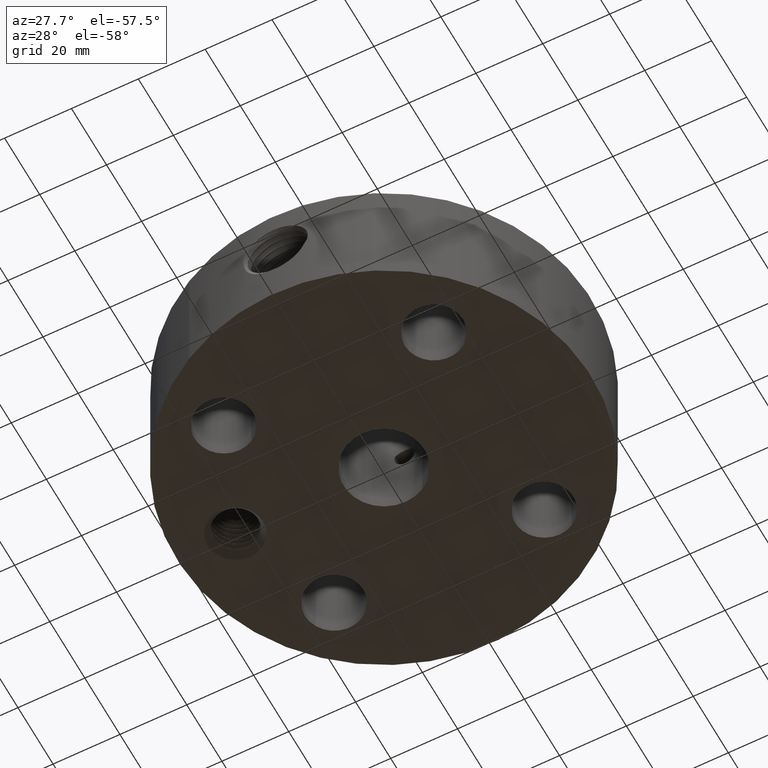
[diagram: clean part render]
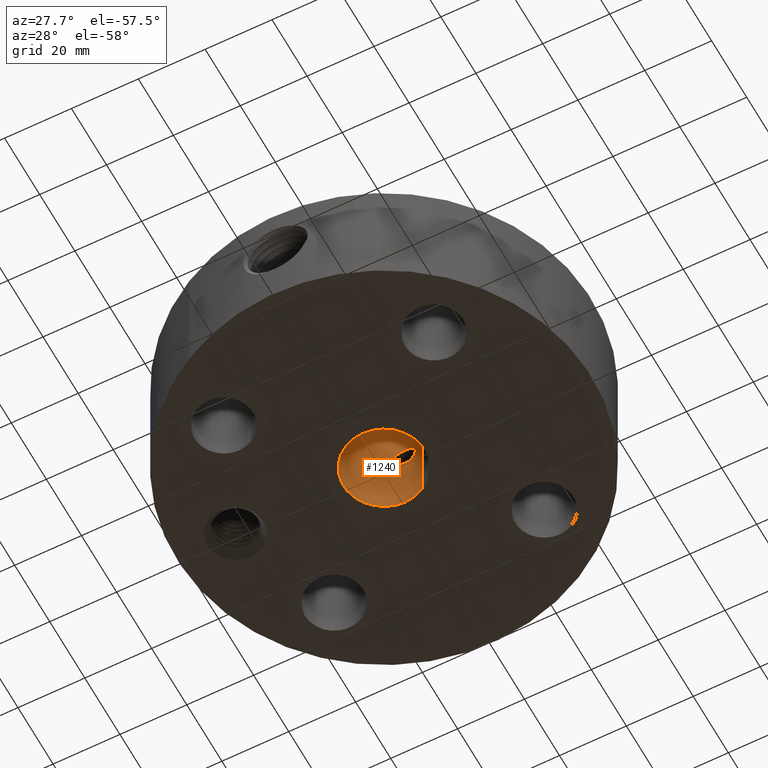
[diagram: same view with one face highlighted and labeled with its STEP entity id]
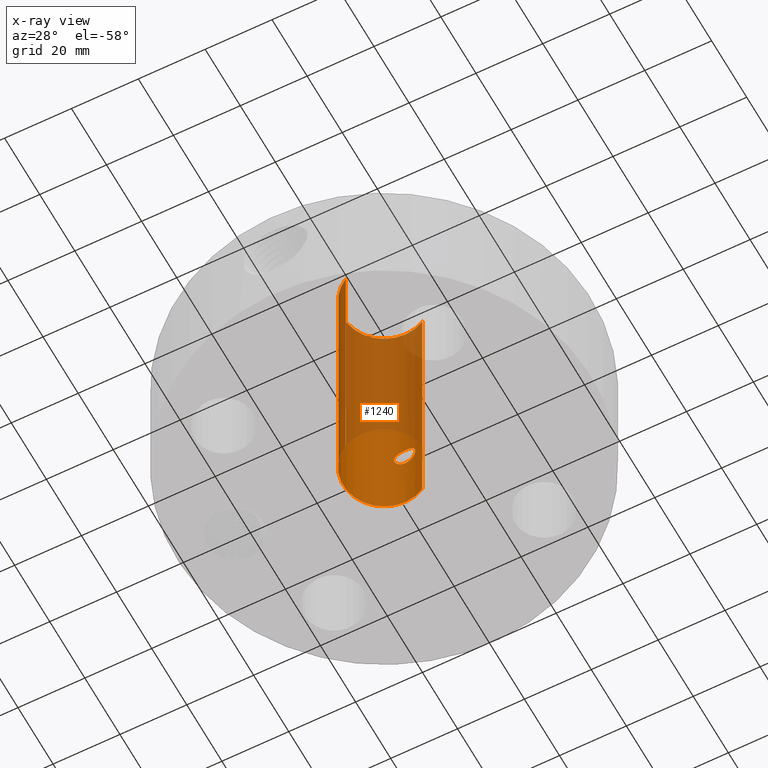
[diagram: x-ray of the same camera — body ghosted, the highlighted face saturated]
A machine part, auxiliary view. The second image highlights one B-rep face of the part: STEP entity #1240.
The next image is the same camera in x-ray: the body ghosted, the highlighted face saturated — about 62% of this face is hidden behind the body in this view.
In plain terms, the highlighted cylindrical surface (partial cylindrical patch) has radius 12.1539 mm, axis along (0, 0, -1).
Its self-contained STEP definition (entity closure, byte-faithful):
#254=AXIS2_PLACEMENT_3D('Circle Axis2P3D',#252,#253,$) ;
#1117=AXIS2_PLACEMENT_3D('Cylinder Axis2P3D',#1114,#1115,#1116) ;
#1189=AXIS2_PLACEMENT_3D('Circle Axis2P3D',#1187,#1188,$) ;
#247=CARTESIAN_POINT('Vertex',(0.229405120223,0.419923255866,0.0600000000002)) ;
#249=CARTESIAN_POINT('Vertex',(-0.229405120223,-0.419923255866,0.0600000000002)) ;
#252=CARTESIAN_POINT('Axis2P3D Location',(0.,0.,0.0600000000002)) ;
#1114=CARTESIAN_POINT('Axis2P3D Location',(0.,0.,1.68500000001)) ;
#1123=CARTESIAN_POINT('Vertex',(0.229405120223,0.419923255866,3.31000000001)) ;
#1125=CARTESIAN_POINT('Vertex',(-0.229405120223,-0.419923255866,3.31000000001)) ;
#1128=CARTESIAN_POINT('Line Origine',(0.229405120223,0.419923255866,1.68500000001)) ;
#1133=CARTESIAN_POINT('Line Origine',(-0.229405120223,-0.419923255866,1.68500000001)) ;
#1187=CARTESIAN_POINT('Axis2P3D Location',(0.,0.,3.31000000001)) ;
#1199=CARTESIAN_POINT('Control Point',(0.109697820237,0.465755985723,0.99992819233)) ;
#1200=CARTESIAN_POINT('Control Point',(0.104177837694,0.467056087217,1.0100324526)) ;
#1201=CARTESIAN_POINT('Control Point',(0.097504517481,0.4685415176,1.01948277863)) ;
#1202=CARTESIAN_POINT('Control Point',(0.0897779513578,0.470117583999,1.02811523389)) ;
#1203=CARTESIAN_POINT('Control Point',(0.063931591657,0.474752036692,1.05104402449)) ;
#1204=CARTESIAN_POINT('Control Point',(0.0311967031082,0.478288694724,1.06437553707)) ;
#1205=CARTESIAN_POINT('Control Point',(0.00751284533469,0.479346773795,1.06804883758)) ;
#1206=CARTESIAN_POINT('Control Point',(-0.0421723244753,0.478056230607,1.06389014629)) ;
#1207=CARTESIAN_POINT('Control Point',(-0.084374216296,0.471748522024,1.03750890281)) ;
#1208=CARTESIAN_POINT('Control Point',(-0.102414130015,0.467700997155,1.0183629626)) ;
#1209=CARTESIAN_POINT('Control Point',(-0.124111834801,0.462216658789,0.978480753721)) ;
#1210=CARTESIAN_POINT('Control Point',(-0.126979028361,0.46132253213,0.933525813873)) ;
#1211=CARTESIAN_POINT('Control Point',(-0.124533991093,0.462035987705,0.91445939094)) ;
#1212=CARTESIAN_POINT('Control Point',(-0.118623789209,0.463653684583,0.896410684285)) ;
#1213=CARTESIAN_POINT('Control Point',(-0.109697820237,0.465755985723,0.880071807678)) ;
#1214=CARTESIAN_POINT('Vertex',(0.109697820237,0.465755985723,0.99992819233)) ;
#1216=CARTESIAN_POINT('Vertex',(-0.109697820237,0.465755985723,0.880071807678)) ;
#1220=CARTESIAN_POINT('Control Point',(-0.109697820237,0.465755985723,0.880071807678)) ;
#1221=CARTESIAN_POINT('Control Point',(-0.104177837694,0.467056087217,0.869967547409)) ;
#1222=CARTESIAN_POINT('Control Point',(-0.097504517482,0.468541517599,0.860517221377)) ;
#1223=CARTESIAN_POINT('Control Point',(-0.0897779513569,0.470117583999,0.851884766118)) ;
#1224=CARTESIAN_POINT('Control Point',(-0.0639315916572,0.474752036691,0.828955975517)) ;
#1225=CARTESIAN_POINT('Control Point',(-0.0311967031102,0.478288694724,0.815624462941)) ;
#1226=CARTESIAN_POINT('Control Point',(-0.00751284533371,0.479346773795,0.811951162428)) ;
#1227=CARTESIAN_POINT('Control Point',(0.0421723244826,0.478056230607,0.816109853714)) ;
#1228=CARTESIAN_POINT('Control Point',(0.0843742163078,0.471748522022,0.842491097201)) ;
#1229=CARTESIAN_POINT('Control Point',(0.102414130008,0.467700997157,0.861637037397)) ;
#1230=CARTESIAN_POINT('Control Point',(0.1241118348,0.462216658789,0.901519246279)) ;
#1231=CARTESIAN_POINT('Control Point',(0.126979028361,0.46132253213,0.946474186134)) ;
#1232=CARTESIAN_POINT('Control Point',(0.124533991094,0.462035987705,0.965540609067)) ;
#1233=CARTESIAN_POINT('Control Point',(0.118623789209,0.463653684583,0.983589315722)) ;
#1234=CARTESIAN_POINT('Control Point',(0.109697820237,0.465755985723,0.99992819233)) ;
#253=DIRECTION('Axis2P3D Direction',(0.,0.,-0.0393700787402)) ;
#1115=DIRECTION('Axis2P3D Direction',(0.,0.,-0.0393700787402)) ;
#1116=DIRECTION('Axis2P3D XDirection',(-0.0188750212049,-0.0345504945626,0.)) ;
#1129=DIRECTION('Vector Direction',(0.,0.,-0.0393700787402)) ;
#1134=DIRECTION('Vector Direction',(0.,0.,-0.0393700787402)) ;
#1188=DIRECTION('Axis2P3D Direction',(0.,0.,-0.0393700787402)) ;
#1130=VECTOR('Line Direction',#1129,0.0393700787402) ;
#1135=VECTOR('Line Direction',#1134,0.0393700787402) ;
#1193=ORIENTED_EDGE('',*,*,#1191,.F.) ;
#1194=ORIENTED_EDGE('',*,*,#1137,.T.) ;
#1195=ORIENTED_EDGE('',*,*,#256,.T.) ;
#1196=ORIENTED_EDGE('',*,*,#1132,.F.) ;
#1237=ORIENTED_EDGE('',*,*,#1218,.F.) ;
#1238=ORIENTED_EDGE('',*,*,#1235,.F.) ;
#1239=FACE_BOUND('',#1236,.T.) ;
#1240=ADVANCED_FACE('PartBody',(#1197,#1239),#1118,.F.) ;
#1198=B_SPLINE_CURVE_WITH_KNOTS('',5,(#1199,#1200,#1201,#1202,#1203,#1204,#1205,#1206,#1207,#1208,#1209,#1210,#1211,#1212,#1213),.UNSPECIFIED.,.F.,.U.,(6,3,3,3,6),(0.,2.0810688805,6.22036448464,10.8026371739,14.167784819),.UNSPECIFIED.) ;
#1219=B_SPLINE_CURVE_WITH_KNOTS('',5,(#1220,#1221,#1222,#1223,#1224,#1225,#1226,#1227,#1228,#1229,#1230,#1231,#1232,#1233,#1234),.UNSPECIFIED.,.F.,.U.,(6,3,3,3,6),(0.,2.08106888035,6.22036448436,10.8026371749,14.16778482),.UNSPECIFIED.) ;
#255=CIRCLE('generated circle',#254,0.478500000002) ;
#1190=CIRCLE('generated circle',#1189,0.478500000002) ;
#1118=CYLINDRICAL_SURFACE('generated cylinder',#1117,0.478500000002) ;
#256=EDGE_CURVE('',#250,#248,#255,.T.) ;
#1132=EDGE_CURVE('',#1124,#248,#1131,.T.) ;
#1137=EDGE_CURVE('',#1126,#250,#1136,.T.) ;
#1191=EDGE_CURVE('',#1126,#1124,#1190,.T.) ;
#1218=EDGE_CURVE('',#1215,#1217,#1198,.T.) ;
#1235=EDGE_CURVE('',#1217,#1215,#1219,.T.) ;
#1192=EDGE_LOOP('',(#1193,#1194,#1195,#1196)) ;
#1236=EDGE_LOOP('',(#1237,#1238)) ;
#1197=FACE_OUTER_BOUND('',#1192,.T.) ;
#1131=LINE('Line',#1128,#1130) ;
#1136=LINE('Line',#1133,#1135) ;
#248=VERTEX_POINT('',#247) ;
#250=VERTEX_POINT('',#249) ;
#1124=VERTEX_POINT('',#1123) ;
#1126=VERTEX_POINT('',#1125) ;
#1215=VERTEX_POINT('',#1214) ;
#1217=VERTEX_POINT('',#1216) ;